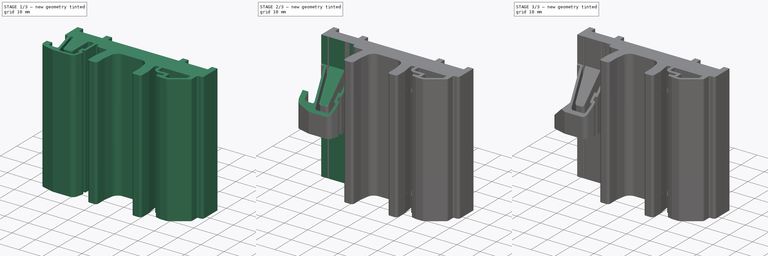
[diagram: build sequence overview — one tinted view per stage of 3, left to right]
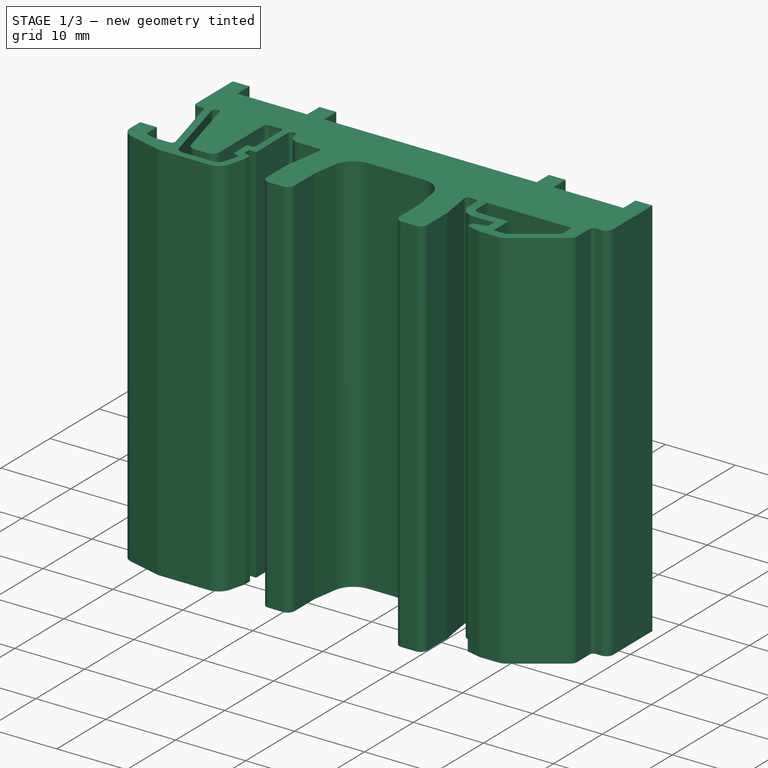
[diagram: stage 1 of 3 — iso view after this stage's code; geometry added in this stage tinted green]
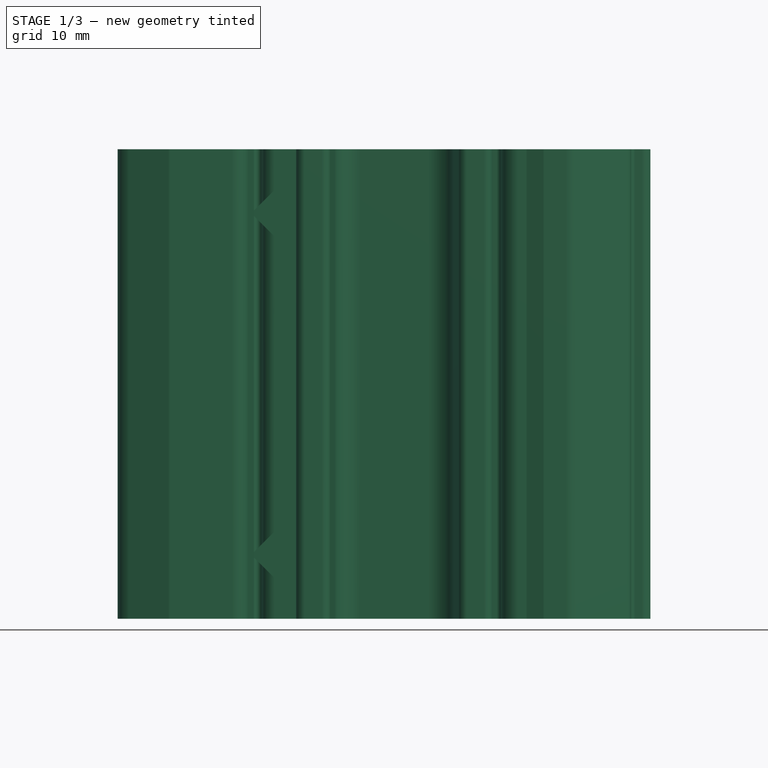
[diagram: stage 1 of 3 — front view after this stage's code; geometry added in this stage tinted green]
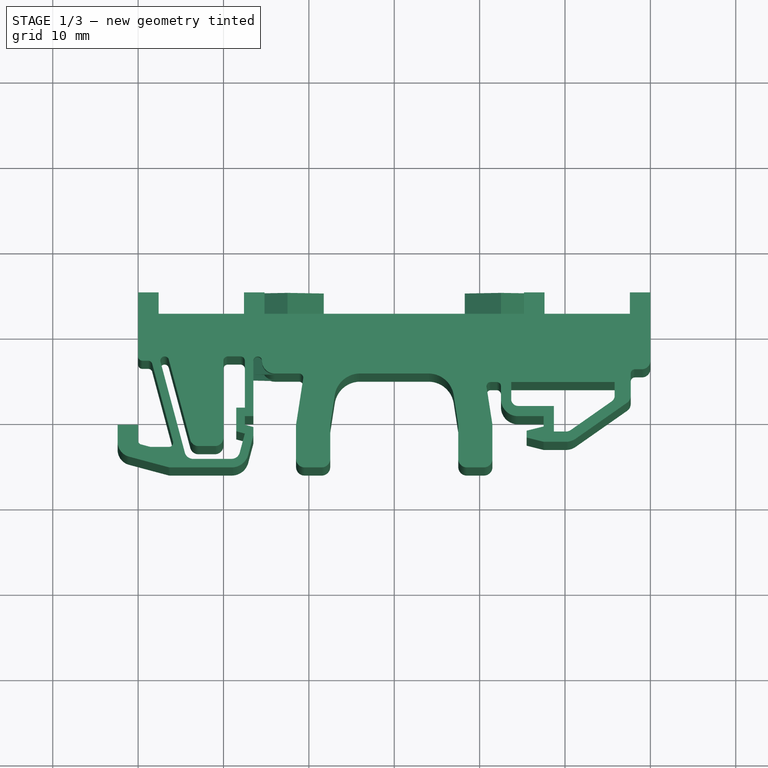
[diagram: stage 1 of 3 — top view after this stage's code; geometry added in this stage tinted green]
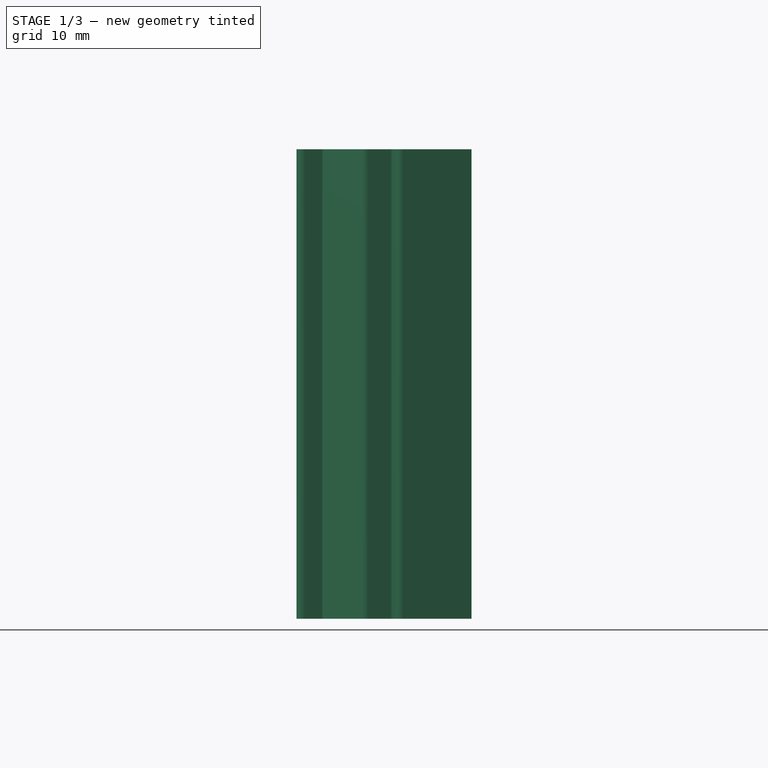
[diagram: stage 1 of 3 — right view after this stage's code; geometry added in this stage tinted green]
FCSTD DOCUMENT  (FreeCAD 0.21R33668 +26 (Git))
Label: din_rail_pcb_holder
License: All rights reserved
LicenseURL: http://en.wikipedia.org/wiki/All_rights_reserved
objects: Sketcher::SketchObject×7, PartDesign::Pocket×4, PartDesign::Pad×2, PartDesign::Body×1
note: 20 computed .brp shape members not serialized (recipe doc carries the construction recipe); baked Part::Feature solids carry a one-line shape summary decoded from their .brp

FEATURE [Sketcher::SketchObject] Sketch
  FullyConstrained = true
  MapMode = 5
  Support = -> [XY_Plane]
  sketch-geometry (109):
    g0: LineSegment StartX=-30 StartY=14.5 StartZ=0 EndX=-30 EndY=7 EndZ=0
    g1: ArcOfCircle CenterX=-29.5 CenterY=7 CenterZ=0 NormalX=0 NormalY=0 NormalZ=1 AngleXU=0 Radius=0.5 StartAngle=3.14159 EndAngle=4.71239
    g2: ArcOfCircle CenterX=-28.8294 CenterY=6 CenterZ=0 NormalX=0 NormalY=0 NormalZ=1 AngleXU=0 Radius=0.5 StartAngle=0.261799 EndAngle=1.5708
    g3: LineSegment StartX=-28.3464 StartY=6.12941 StartZ=0 EndX=-25.9081 EndY=-2.97059 EndZ=0
    g4: ArcOfCircle CenterX=-26.3911 CenterY=-3.1 CenterZ=0 NormalX=0 NormalY=0 NormalZ=1 AngleXU=0 Radius=0.5 StartAngle=4.71239 EndAngle=6.54498
    g5: ArcOfCircle CenterX=-29.5 CenterY=-2.82887 CenterZ=0 NormalX=0 NormalY=0 NormalZ=1 AngleXU=0 Radius=0.5 StartAngle=3.14159 EndAngle=4.45059
    g6: LineSegment StartX=-30 StartY=-2.82887 StartZ=0 EndX=-30 EndY=-1 EndZ=0
    g7: LineSegment StartX=-30 StartY=-1 StartZ=0 EndX=-32.4 EndY=-1 EndZ=0
    g8: LineSegment StartX=-32.4 StartY=-1 StartZ=0 EndX=-32.4 EndY=-3 EndZ=0
    g9: ArcOfCircle CenterX=-30.6 CenterY=-3 CenterZ=0 NormalX=0 NormalY=0 NormalZ=1 AngleXU=0 Radius=1.8 StartAngle=3.14159 EndAngle=4.45059
    g10: LineSegment StartX=-31.0659 StartY=-4.73867 StartZ=0 EndX=-26.4857 EndY=-5.96593 EndZ=0
    g11: ArcOfCircle CenterX=-26.2269 CenterY=-5 CenterZ=0 NormalX=0 NormalY=0 NormalZ=1 AngleXU=0 Radius=1 StartAngle=4.45059 EndAngle=4.71239
    g12: LineSegment StartX=-26.2269 StartY=-6 StartZ=0 EndX=-19.0347 EndY=-6 EndZ=0
    g13: ArcOfCircle CenterX=-19.0347 CenterY=-4 CenterZ=0 NormalX=0 NormalY=0 NormalZ=1 AngleXU=0 Radius=2 StartAngle=4.71239 EndAngle=6.02139
    g14: LineSegment StartX=-17.1028 StartY=-4.51764 StartZ=0 EndX=-16.5 EndY=-2.26795 EndZ=0
    g15: LineSegment StartX=-16.5 StartY=-2.26795 StartZ=0 EndX=-16.5 EndY=-1.26795 EndZ=0
    g16: LineSegment StartX=-16.5 StartY=-1.26795 StartZ=0 EndX=-17.5 EndY=-1 EndZ=0
    g17: LineSegment StartX=-17.5 StartY=-1 StartZ=0 EndX=-17.5 EndY=0 EndZ=0
    g18: LineSegment StartX=-17.5 StartY=0 StartZ=0 EndX=-16.5 EndY=0 EndZ=0
    g19: LineSegment StartX=-16.5 StartY=0 StartZ=0 EndX=-16.5 EndY=6.5 EndZ=0
    g20: ArcOfCircle CenterX=-16 CenterY=6.5 CenterZ=0 NormalX=0 NormalY=0 NormalZ=1 AngleXU=0 Radius=0.5 StartAngle=-9e-16 EndAngle=3.14159
    g21: ArcOfCircle CenterX=-14 CenterY=6.5 CenterZ=0 NormalX=0 NormalY=0 NormalZ=1 AngleXU=0 Radius=1.5 StartAngle=3.14159 EndAngle=4.71239
    g22: LineSegment StartX=-14 StartY=5 StartZ=0 EndX=-11.1548 EndY=5 EndZ=0
    g23: ArcOfCircle CenterX=-11.1548 CenterY=4.5 CenterZ=0 NormalX=0 NormalY=0 NormalZ=1 AngleXU=0 Radius=0.5 StartAngle=6.12964 EndAngle=7.85398
    g24: LineSegment StartX=-10.6606 StartY=4.42353 StartZ=0 EndX=-11.5 EndY=-1 EndZ=0
    g25: LineSegment StartX=-11.5 StartY=-1 StartZ=0 EndX=-11.5 EndY=-5 EndZ=0
    g26: ArcOfCircle CenterX=-10.5 CenterY=-5 CenterZ=0 NormalX=0 NormalY=0 NormalZ=1 AngleXU=0 Radius=1 StartAngle=3.14159 EndAngle=4.71239
    g27: LineSegment StartX=-10.5 StartY=-6 StartZ=0 EndX=-8.5 EndY=-6 EndZ=0
    g28: ArcOfCircle CenterX=-8.5 CenterY=-5 CenterZ=0 NormalX=0 NormalY=0 NormalZ=1 AngleXU=0 Radius=1 StartAngle=4.71239 EndAngle=6.28319
    g29: LineSegment StartX=-7.5 StartY=-5 StartZ=0 EndX=-7.5 EndY=-1 EndZ=0
    g30: LineSegment StartX=-7.5 StartY=-1 StartZ=0 EndX=-6.96471 EndY=2.45882 EndZ=0
    g31: ArcOfCircle CenterX=-4 CenterY=2 CenterZ=0 NormalX=0 NormalY=0 NormalZ=1 AngleXU=0 Radius=3 StartAngle=1.5708 EndAngle=2.98805
    g32: LineSegment StartX=-4 StartY=5 StartZ=0 EndX=4 EndY=5 EndZ=0
    g33: ArcOfCircle CenterX=4 CenterY=2 CenterZ=0 NormalX=0 NormalY=0 NormalZ=1 AngleXU=0 Radius=3 StartAngle=0.153544 EndAngle=1.5708
    g34: LineSegment StartX=6.96471 StartY=2.45882 StartZ=0 EndX=7.5 EndY=-1 EndZ=0
    g35: LineSegment StartX=7.5 StartY=-1 StartZ=0 EndX=7.5 EndY=-5 EndZ=0
    g36: ArcOfCircle CenterX=8.5 CenterY=-5 CenterZ=0 NormalX=0 NormalY=0 NormalZ=1 AngleXU=0 Radius=1 StartAngle=3.14159 EndAngle=4.71239
    g37: LineSegment StartX=8.5 StartY=-6 StartZ=0 EndX=10.5 EndY=-6 EndZ=0
    g38: ArcOfCircle CenterX=10.5 CenterY=-5 CenterZ=0 NormalX=0 NormalY=0 NormalZ=1 AngleXU=0 Radius=1 StartAngle=4.71239 EndAngle=6.28319
    g39: LineSegment StartX=11.5 StartY=-5 StartZ=0 EndX=11.5 EndY=-1 EndZ=0
    g40: LineSegment StartX=11.5 StartY=-1 StartZ=0 EndX=10.8154 EndY=3.42353 EndZ=0
    g41: LineSegment StartX=12.5 StartY=3.5 StartZ=0 EndX=12.5 EndY=2 EndZ=0
    g42: ArcOfCircle CenterX=14.5 CenterY=2 CenterZ=0 NormalX=0 NormalY=0 NormalZ=1 AngleXU=0 Radius=2 StartAngle=3.14159 EndAngle=4.71239
    g43: LineSegment StartX=14.5 StartY=0 StartZ=0 EndX=17.5 EndY=0 EndZ=0
    g44: LineSegment StartX=17.5 StartY=0 StartZ=0 EndX=17.5 EndY=-1.2 EndZ=0
    g45: LineSegment StartX=17.5 StartY=-1.2 StartZ=0 EndX=15.5 EndY=-1.7 EndZ=0
    g46: LineSegment StartX=15.5 StartY=-1.7 StartZ=0 EndX=15.5 EndY=-2.5 EndZ=0
    g47: LineSegment StartX=15.5 StartY=-2.5 StartZ=0 EndX=17.5 EndY=-3 EndZ=0
    g48: LineSegment StartX=17.5 StartY=-3 StartZ=0 EndX=20.1 EndY=-3 EndZ=0
    g49: ArcOfCircle CenterX=20.1 CenterY=-1 CenterZ=0 NormalX=0 NormalY=0 NormalZ=1 AngleXU=0 Radius=2 StartAngle=4.71239 EndAngle=5.32325
    g50: LineSegment StartX=21.2472 StartY=-2.6383 StartZ=0 EndX=27.2727 EndY=1.58085 EndZ=0
    g51: LineSegment StartX=30 StartY=6.5 StartZ=0 EndX=30 EndY=14.5 EndZ=0
    g52: LineSegment StartX=-23.8943 StartY=-2.75882 StartZ=0 EndX=-26.4099 EndY=6.62941 EndZ=0
    g53: ArcOfCircle CenterX=-26.8928 CenterY=6.5 CenterZ=0 NormalX=0 NormalY=0 NormalZ=1 AngleXU=0 Radius=0.5 StartAngle=0.261799 EndAngle=3.40339
    g54: LineSegment StartX=-27.3758 StartY=6.37059 StartZ=0 EndX=-24.5276 EndY=-4.25882 EndZ=0
    g55: ArcOfCircle CenterX=-23.5617 CenterY=-4 CenterZ=0 NormalX=0 NormalY=0 NormalZ=1 AngleXU=0 Radius=1 StartAngle=3.40339 EndAngle=4.71239
    g56: LineSegment StartX=-23.5617 StartY=-5 StartZ=0 EndX=-19.0617 EndY=-5 EndZ=0
    g57: ArcOfCircle CenterX=-19.0617 CenterY=-4 CenterZ=0 NormalX=0 NormalY=0 NormalZ=1 AngleXU=0 Radius=1 StartAngle=4.71239 EndAngle=6.02139
    g58: LineSegment StartX=-18.0958 StartY=-4.25882 StartZ=0 EndX=-17.5 EndY=-2.03528 EndZ=0
    g59: LineSegment StartX=-17.5 StartY=-2.03528 StartZ=0 EndX=-18.5 EndY=-1.76733 EndZ=0
    g60: LineSegment StartX=-18.5 StartY=-1.76733 StartZ=0 EndX=-18.5 EndY=1 EndZ=0
    g61: LineSegment StartX=-18.5 StartY=1 StartZ=0 EndX=-17.5 EndY=1 EndZ=0
    g62: LineSegment StartX=-17.5 StartY=1 StartZ=0 EndX=-17.5 EndY=6.5 EndZ=0
    g63: ArcOfCircle CenterX=-18 CenterY=6.5 CenterZ=0 NormalX=0 NormalY=0 NormalZ=1 AngleXU=0 Radius=0.5 StartAngle=-9e-16 EndAngle=1.5708
    g64: LineSegment StartX=-18 StartY=7 StartZ=0 EndX=-19.5 EndY=7 EndZ=0
    g65: ArcOfCircle CenterX=-19.5 CenterY=6.5 CenterZ=0 NormalX=0 NormalY=0 NormalZ=1 AngleXU=0 Radius=0.5 StartAngle=1.5708 EndAngle=3.14159
    g66: LineSegment StartX=-20 StartY=6.5 StartZ=0 EndX=-20 EndY=-2.5 EndZ=0
    g67: ArcOfCircle CenterX=-21 CenterY=-2.5 CenterZ=0 NormalX=0 NormalY=0 NormalZ=1 AngleXU=0 Radius=1 StartAngle=4.71239 EndAngle=6.28319
    g68: LineSegment StartX=-21 StartY=-3.5 StartZ=0 EndX=-22.9284 EndY=-3.5 EndZ=0
    g69: ArcOfCircle CenterX=-22.9284 CenterY=-2.5 CenterZ=0 NormalX=0 NormalY=0 NormalZ=1 AngleXU=0 Radius=1 StartAngle=3.40339 EndAngle=4.71239
    g70: LineSegment StartX=25.8188 StartY=4 StartZ=0 EndX=13.7 EndY=4 EndZ=0
    g71: LineSegment StartX=13.7 StartY=4 StartZ=0 EndX=13.7 EndY=2 EndZ=0
    g72: ArcOfCircle CenterX=14.5 CenterY=2 CenterZ=0 NormalX=0 NormalY=0 NormalZ=1 AngleXU=0 Radius=0.8 StartAngle=3.14159 EndAngle=4.71239
    g73: LineSegment StartX=14.5 StartY=1.2 StartZ=0 EndX=18.7 EndY=1.2 EndZ=0
    g74: LineSegment StartX=18.7 StartY=1.2 StartZ=0 EndX=18.7 EndY=-1.8 EndZ=0
    g75: LineSegment StartX=18.7 StartY=-1.8 StartZ=0 EndX=20.1 EndY=-1.8 EndZ=0
    g76: ArcOfCircle CenterX=20.1 CenterY=-0.8 CenterZ=0 NormalX=0 NormalY=0 NormalZ=1 AngleXU=0 Radius=1 StartAngle=4.71239 EndAngle=5.32325
    g77: LineSegment StartX=20.6736 StartY=-1.61915 StartZ=0 EndX=25.4776 EndY=1.74468 EndZ=0
    g78: ArcOfCircle CenterX=25.0188 CenterY=2.4 CenterZ=0 NormalX=0 NormalY=0 NormalZ=1 AngleXU=0 Radius=0.8 StartAngle=5.32325 EndAngle=6.28319
    g79: LineSegment StartX=25.8188 StartY=2.4 StartZ=0 EndX=25.8188 EndY=4 EndZ=0
    g80: LineSegment StartX=-30 StartY=7 StartZ=0 EndX=30 EndY=7 EndZ=0
    g81: LineSegment StartX=-29.6294 StartY=-3.31183 StartZ=0 EndX=-28.554 EndY=-3.6 EndZ=0
    g82: LineSegment StartX=-28.554 StartY=-3.6 StartZ=0 EndX=-26.3911 EndY=-3.6 EndZ=0
    g83: LineSegment StartX=-29.5 StartY=6.5 StartZ=0 EndX=-28.8294 EndY=6.5 EndZ=0
    g84: LineSegment StartX=11.3095 StartY=4 StartZ=0 EndX=12 EndY=4 EndZ=0
    g85: ArcOfCircle CenterX=11.3095 CenterY=3.5 CenterZ=0 NormalX=0 NormalY=0 NormalZ=1 AngleXU=0 Radius=0.5 StartAngle=1.5708 EndAngle=3.29514
    g86: GeomPoint X=10.7262 Y=4 Z=0
    g87: ArcOfCircle CenterX=12 CenterY=3.5 CenterZ=0 NormalX=0 NormalY=0 NormalZ=1 AngleXU=0 Radius=0.5 StartAngle=0 EndAngle=1.5708
    g88: GeomPoint X=12.5 Y=4 Z=0
    g89: LineSegment StartX=29 StartY=5.5 StartZ=0 EndX=28.1992 EndY=5.5 EndZ=0
    g90: ArcOfCircle CenterX=26.6992 CenterY=2.4 CenterZ=0 NormalX=0 NormalY=0 NormalZ=1 AngleXU=0 Radius=1 StartAngle=5.32325 EndAngle=6.28319
    g91: ArcOfCircle CenterX=29 CenterY=6.5 CenterZ=0 NormalX=0 NormalY=0 NormalZ=1 AngleXU=0 Radius=1 StartAngle=4.71239 EndAngle=6.28319
    g92: GeomPoint X=30 Y=5.5 Z=0
    g93: LineSegment StartX=27.6992 StartY=2.4 StartZ=0 EndX=27.6992 EndY=5 EndZ=0
    g94: ArcOfCircle CenterX=28.1992 CenterY=5 CenterZ=0 NormalX=0 NormalY=0 NormalZ=1 AngleXU=0 Radius=0.5 StartAngle=1.5708 EndAngle=3.14159
    g95: GeomPoint X=0 Y=14.5 Z=0
    g96: LineSegment StartX=-27.6 StartY=14.5 StartZ=0 EndX=-27.6 EndY=12 EndZ=0
    g97: LineSegment StartX=-27.6 StartY=12 StartZ=0 EndX=-17.6 EndY=12 EndZ=0
    g98: LineSegment StartX=-17.6 StartY=12 StartZ=0 EndX=-17.6 EndY=14.5 EndZ=0
    g99: LineSegment StartX=-17.6 StartY=14.5 StartZ=0 EndX=-15.2 EndY=14.5 EndZ=0
    g100: LineSegment StartX=-15.2 StartY=14.5 StartZ=0 EndX=-15.2 EndY=12 EndZ=0
    g101: LineSegment StartX=-15.2 StartY=12 StartZ=0 EndX=15.2 EndY=12 EndZ=0
    g102: LineSegment StartX=15.2 StartY=12 StartZ=0 EndX=15.2 EndY=14.5 EndZ=0
    g103: LineSegment StartX=15.2 StartY=14.5 StartZ=0 EndX=17.6 EndY=14.5 EndZ=0
    g104: LineSegment StartX=17.6 StartY=14.5 StartZ=0 EndX=17.6 EndY=12 EndZ=0
    g105: LineSegment StartX=17.6 StartY=12 StartZ=0 EndX=27.6 EndY=12 EndZ=0
    g106: LineSegment StartX=27.6 StartY=12 StartZ=0 EndX=27.6 EndY=14.5 EndZ=0
    g107: LineSegment StartX=27.6 StartY=14.5 StartZ=0 EndX=30 EndY=14.5 EndZ=0
    g108: LineSegment StartX=-27.6 StartY=14.5 StartZ=0 EndX=-30 EndY=14.5 EndZ=0
  constraints (287):
    c: Vertical(g0)
    c: Tangent(g0,g1) = -1.5708
    c: Tangent(g3,g4) = 1.5708
    c: Vertical(g6)
    c: Coincident(g6,g7)
    c: Horizontal(g7)
    c: Coincident(g7,g8)
    c: Vertical(g8)
    c: Tangent(g8,g9) = -1.5708
    c: Tangent(g10,g11) = -1.5708
    c: Horizontal(g12)
    c: Tangent(g12,g13) = -1.5708
    c: Coincident(g14,g15)
    c: Vertical(g15)
    c: Coincident(g15,g16)
    c: Coincident(g16,g17)
    c: PointOnObject(g17,g-1)
    c: Vertical(g17)
    c: Coincident(g17,g18)
    c: PointOnObject(g18,g-1)
    c: Coincident(g18,g19)
    c: Vertical(g19)
    c: Tangent(g19,g20) = 1.5708
    c: Tangent(g20,g21) = 1.5708
    c: Horizontal(g22)
    c: Tangent(g22,g23) = 1.5708
    c: Coincident(g24,g25)
    c: Vertical(g25)
    c: Tangent(g25,g26) = -1.5708
    c: Horizontal(g27)
    c: Tangent(g27,g28) = -1.5708
    c: Vertical(g29)
    c: Coincident(g29,g30)
    c: Tangent(g30,g31) = 1.5708
    c: Tangent(g32,g33) = 1.5708
    c: Coincident(g34,g35)
    c: Vertical(g35)
    c: Tangent(g35,g36) = -1.5708
    c: Horizontal(g37)
    c: Tangent(g37,g38) = -1.5708
    c: Vertical(g39)
    c: Coincident(g39,g40)
    c: Vertical(g41)
    c: Tangent(g41,g42) = -1.5708
    c: Tangent(g42,g43) = -1.5708
    c: Coincident(g43,g44)
    c: Vertical(g44)
    c: Coincident(g44,g45)
    c: Coincident(g45,g46)
    c: Vertical(g46)
    c: Coincident(g46,g47)
    c: Coincident(g47,g48)
    c: Horizontal(g48)
    c: Tangent(g48,g49) = -1.5708
    c: Vertical(g51)
    c: Tangent(g52,g53) = -1.5708
    c: Tangent(g54,g55) = -1.5708
    c: Horizontal(g56)
    c: Tangent(g56,g57) = -1.5708
    c: Coincident(g58,g59)
    c: Coincident(g59,g60)
    c: Vertical(g60)
    c: Coincident(g60,g61)
    c: Horizontal(g61)
    c: Coincident(g61,g62)
    c: Vertical(g62)
    c: Tangent(g62,g63) = -1.5708
    c: Tangent(g64,g65) = -1.5708
    c: Vertical(g66)
    c: Tangent(g66,g67) = 1.5708
    c: Horizontal(g68)
    c: Tangent(g68,g69) = 1.5708
    c: Horizontal(g70)
    c: Coincident(g70,g71)
    c: Vertical(g71)
    c: Tangent(g71,g72) = -1.5708
    c: Horizontal(g73)
    c: Coincident(g73,g74)
    c: Vertical(g74)
    c: Coincident(g74,g75)
    c: Horizontal(g75)
    c: Tangent(g75,g76) = -1.5708
    c: Tangent(g77,g78) = -1.5708
    c: Coincident(g79,g70)
    c: Vertical(g79)
    c: DistanceY(g0,g0) = 7.5  'Base_Width'
    c: Radius(g4) = 0.5
    c: Radius(g5) = 0.5
    c: DistanceY(g6,g-1) = 1
    c: DistanceX(g7,g7) = 2.4
    c: DistanceY(g8,g8) = 2
    c: Radius(g9) = 1.8
    c: Radius(g11) = 1
    c: Radius(g13) = 2
    c: Radius(g1) = 0.5
    c: Tangent(g2,g3) = 1.5708
    c: Tangent(g11,g12) = -1.5708
    c: Radius(g67) = 1
    c: Radius(g26) = 1
    c: Radius(g31) = 3
    c: Radius(g42) = 2
    c: Radius(g72) = 0.8
    c: Radius(g78) = 0.8
    c: Radius(g76) = 1
    c: Radius(g49) = 2
    c: Vertical(g61,g58)
    c: Vertical(g18,g15)
    c: Vertical(g61,g17)
    c: DistanceY(g56,g67) = 1.5
    c: DistanceY(g12,g56) = 1
    c: DistanceX(g65,g62) = 2.5
    c: DistanceX(g43,g73) = 1.2
    c: DistanceY(g43,g73) = 1.2
    c: Vertical(g44,g47)
    c: DistanceY(g47,g44) = 1.8
    c: Tangent(g26,g27) = -1.5708
    c: Tangent(g28,g29) = -1.5708
    c: DistanceX(g17,g43) = 35
    c: Symmetric(g17,g43,g-2)
    c: Tangent(g36,g37) = -1.5708
    c: Tangent(g38,g39) = -1.5708
    c: Equal(g38,g36)
    c: Equal(g36,g28)
    c: Equal(g28,g26)
    c: Equal(g31,g33)
    c: Equal(g39,g35)
    c: Equal(g35,g29)
    c: Equal(g29,g25)
    c: DistanceY(g-1,g27) = -6
    c: Symmetric(g28,g35,g-2)
    c: DistanceX(g28,g35) = 15
    c: DistanceX(g25,g28) = 4
    c: Equal(g27,g37)
    c: DistanceY(g25,g25) = 4
    c: DistanceY(g-1,g31) = 5
    c: Equal(g57,g67)
    c: Equal(g67,g69)
    c: Equal(g69,g55)
    c: DistanceY(g17,g17) = 1
    c: DistanceY(g44,g44) = 1.2
    c: Equal(g47,g45)
    c: DistanceY(g46,g46) = 0.8
    c: DistanceX(g45,g44) = 2
    c: DistanceX(g43,g43) = 3
    c: Tangent(g31,g32) = 1.5708
    c: Symmetric(g31,g32,g-2)
    c: DistanceX(g32,g32) = 8
    c: Parallel(g24,g30)
    c: Horizontal(g22,g31)
    c: Tangent(g65,g66) = -1.5708
    c: Tangent(g63,g64) = -1.5708
    c: Equal(g53,g65)
    c: Equal(g65,g63)
    c: Equal(g63,g20)
    c: Equal(g20,g23)
    c: Equal(g17,g18)
    c: Equal(g18,g61)
    c: Parallel(g14,g58)
    c: Angle(g16,g18) = 0.261799
    c: DistanceY(g-1,g12) = -6
    c: Distance(g74,g48) = 1.2
    c: Tangent(g78,g79) = -1.5708
    c: Tangent(g49,g50) = -1.5708
    c: Tangent(g76,g77) = -1.5708
    c: DistanceY(g79,g79) = 1.6
    c: Parallel(g77,g50)
    c: Vertical(g48,g75)
    c: Angle(g70,g77) = 0.610865
    c: Perpendicular(g16,g58)
    c: Equal(g15,g17)
    c: Tangent(g13,g14) = -1.5708
    c: Tangent(g57,g58) = -1.5708
    c: Parallel(g3,g54)
    c: Parallel(g54,g52)
    c: Angle(g66,g52) = 0.261799
    c: Tangent(g72,g73) = -1.5708
    c: Tangent(g9,g10) = -1.5708
    c: Tangent(g5,g6) = 1.5708
    c: Distance(g53,g3) = 1
    c: DistanceX(g56,g56) = 4.5
    c: Tangent(g55,g56) = -1.5708
    c: Parallel(g59,g16)
    c: Distance(g58,g16) = 1
    c: Tangent(g69,g52) = 1.5708
    c: Coincident(g80,g0)
    c: PointOnObject(g80,g51)
    c: Horizontal(g80)
    c: Tangent(g20,g80)
    c: Horizontal(g64)
    c: PointOnObject(g64,g80)
    c: Tangent(g53,g80)
    c: DistanceY(g-1,g0) = 7
    c: Parallel(g10,g16)
    c: Parallel(g81,g10)
    c: Distance(g5,g10) = 1.75
    c: Coincident(g82,g81)
    c: Horizontal(g82)
    c: Tangent(g81,g5) = -1.5708
    c: Tangent(g82,g4) = -1.5708
    c: DistanceY(g11,g4) = 2.4
    c: Vertical(g6,g0)
    c: DistanceX(g80,g80) = 60  'Total_Height'
    c: Tangent(g53,g54) = -1.5708
    c: DistanceY(g17,g61) = 1
    c: Tangent(g23,g24) = 1.5708
    c: Tangent(g33,g34) = 1.5708
    c: Tangent(g21,g22) = -1.5708
    c: Tangent(g67,g68) = 1.5708
    c: Equal(g1,g2)
    c: Horizontal(g21,g19)
    c: Tangent(g83,g1) = -1.5708
    c: Horizontal(g83)
    c: Tangent(g2,g83) = 1.5708
    c: Parallel(g34,g40)
    c: DistanceX(g41,g71) = 1.2
    c: Horizontal(g84)
    c: Horizontal(g88,g70)
    c: PointOnObject(g86,g40)
    c: PointOnObject(g86,g84)
    c: Tangent(g40,g85) = 1.5708
    c: Tangent(g84,g85) = 1.5708
    c: PointOnObject(g88,g41)
    c: PointOnObject(g88,g84)
    c: Tangent(g41,g87) = 1.5708
    c: Tangent(g84,g87) = 1.5708
    c: Equal(g85,g87)
    c: Equal(g85,g23)
    c: DistanceX(g75,g75) = 1.4
    c: DistanceY(g71,g71) = 2
    c: Radius(g85) = 0.5
    c: Horizontal(g89)
    c: PointOnObject(g92,g51)
    c: PointOnObject(g92,g89)
    c: Tangent(g51,g91) = -1.5708
    c: Tangent(g89,g91) = 1.5708
    c: Radius(g91) = 1
    c: Tangent(g90,g50) = -1.5708
    c: Radius(g90) = 1
    c: Horizontal(g78,g90)
    c: DistanceY(g51,g80) = 0.5
    c: Vertical(g93)
    c: Tangent(g93,g90) = -1.5708
    c: Tangent(g89,g94) = -1.5708
    c: Tangent(g93,g94) = 1.5708
    c: Radius(g94) = 0.5
    c: Symmetric(g0,g51,g95)
    c: DistanceX(g-2,g95) = 0  'Center_Offset'
    c: Horizontal(g43)
    c: Coincident(g96,g97)
    c: Horizontal(g97)
    c: Coincident(g97,g98)
    c: Coincident(g98,g99)
    c: Horizontal(g99)
    c: Coincident(g99,g100)
    c: Coincident(g100,g101)
    c: Horizontal(g101)
    c: Coincident(g101,g102)
    c: Vertical(g102)
    c: Coincident(g102,g103)
    c: Horizontal(g103)
    c: Coincident(g103,g104)
    c: Vertical(g104)
    c: Coincident(g104,g105)
    c: Horizontal(g105)
    c: Coincident(g105,g106)
    c: Vertical(g106)
    c: Coincident(g106,g107)
    c: Coincident(g107,g51)
    c: Horizontal(g107)
    c: Vertical(g100)
    c: Vertical(g98)
    c: Vertical(g96)
    c: Equal(g107,g103)
    c: Equal(g103,g99)
    c: DistanceX(g103,g103) = 2.4
    c: Equal(g97,g105)
    c: Equal(g96,g98)
    c: Equal(g98,g100)
    c: Equal(g100,g102)
    c: Equal(g102,g104)
    c: Equal(g104,g106)
    c: DistanceY(g96,g96) = 2.5
    c: Coincident(g108,g96)
    c: Coincident(g108,g0)
    c: Horizontal(g108)
    c: Equal(g99,g108)
    c: DistanceX(g97,g97) = 10
FEATURE [PartDesign::Pad] Pad  label="din_rail_pcb_holder_profil"
  AllowMultiFace = false
  Direction = (0,0,1)
  Length = 55
  Length2 = 100
  Midplane = true
  Profile = -> Sketch
  ReferenceAxis = -> Sketch [N_Axis]
  Refine = true
  Type = 0
FEATURE [Sketcher::SketchObject] Sketch001  label="master_schraubenloch"
  FullyConstrained = true
  MapMode = 5
  Placement = pos=(0,0,0) rot=(1,0,0;1.5708rad)
  Support = -> [XZ_Plane]
  sketch-geometry (5):
    g0: LineSegment StartX=12.5 StartY=-20 StartZ=0 EndX=12.5 EndY=20 EndZ=0
    g1: LineSegment StartX=12.5 StartY=20 StartZ=0 EndX=-12.5 EndY=20 EndZ=0
    g2: LineSegment StartX=-12.5 StartY=20 StartZ=0 EndX=-12.5 EndY=-20 EndZ=0
    g3: LineSegment StartX=-12.5 StartY=-20 StartZ=0 EndX=12.5 EndY=-20 EndZ=0
    g4: GeomPoint X=0 Y=0 Z=0
  constraints (12):
    c: Coincident(g0,g1)
    c: Coincident(g1,g2)
    c: Coincident(g2,g3)
    c: Coincident(g3,g0)
    c: Horizontal(g1)
    c: Horizontal(g3)
    c: Vertical(g0)
    c: Vertical(g2)
    c: Symmetric(g1,g0,g4)
    c: Coincident(g4,g-1)
    c: DistanceY(g0,g0) = 40  'breite'
    c: DistanceX(g1,g1) = 25  'hoehe'
FEATURE [Sketcher::SketchObject] Sketch002
  AttachmentOffset = pos=(0,0,-5) rot=(0,0,1;0rad)
  FullyConstrained = true
  MapMode = 5
  Placement = pos=(0,5,1.1e-15) rot=(1,0,0;1.5708rad)
  Support = -> [XZ_Plane]
  expr: Constraints[10] = <<master_schraubenloch>>.Constraints.breite
  expr: Constraints[11] = <<master_schraubenloch>>.Constraints.hoehe
  sketch-geometry (29):
    g0: LineSegment StartX=-12.5 StartY=20 StartZ=0 EndX=-12.5 EndY=-20 EndZ=0
    g1: LineSegment StartX=-12.5 StartY=-20 StartZ=0 EndX=12.5 EndY=-20 EndZ=0
    g2: LineSegment StartX=12.5 StartY=-20 StartZ=0 EndX=12.5 EndY=20 EndZ=0
    g3: LineSegment StartX=12.5 StartY=20 StartZ=0 EndX=-12.5 EndY=20 EndZ=0
    g4: GeomPoint X=0 Y=0 Z=0
    g5: LineSegment StartX=-16.7426 StartY=20 StartZ=0 EndX=-12.5 EndY=15.7574 EndZ=0
    g6: LineSegment StartX=-12.5 StartY=15.7574 StartZ=0 EndX=-8.25736 EndY=20 EndZ=0
    g7: LineSegment StartX=-8.25736 StartY=20 StartZ=0 EndX=-12.5 EndY=24.2426 EndZ=0
    g8: LineSegment StartX=-12.5 StartY=24.2426 StartZ=0 EndX=-16.7426 EndY=20 EndZ=0
    g9: Circle CenterX=-12.5 CenterY=20 CenterZ=0 NormalX=0 NormalY=0 NormalZ=1 AngleXU=0 Radius=4.24264
    g10: LineSegment StartX=12.5 StartY=15.7574 StartZ=0 EndX=16.7426 EndY=20 EndZ=0
    g11: LineSegment StartX=16.7426 StartY=20 StartZ=0 EndX=12.5 EndY=24.2426 EndZ=0
    g12: LineSegment StartX=12.5 StartY=24.2426 StartZ=0 EndX=8.25736 EndY=20 EndZ=0
    g13: LineSegment StartX=8.25736 StartY=20 StartZ=0 EndX=12.5 EndY=15.7574 EndZ=0
    g14: Circle CenterX=12.5 CenterY=20 CenterZ=0 NormalX=0 NormalY=0 NormalZ=1 AngleXU=0 Radius=4.24264
    g15: LineSegment StartX=-12.5 StartY=-24.2426 StartZ=0 EndX=-8.25736 EndY=-20 EndZ=0
    g16: LineSegment StartX=-8.25736 StartY=-20 StartZ=0 EndX=-12.5 EndY=-15.7574 EndZ=0
    g17: LineSegment StartX=-12.5 StartY=-15.7574 StartZ=0 EndX=-16.7426 EndY=-20 EndZ=0
    g18: LineSegment StartX=-16.7426 StartY=-20 StartZ=0 EndX=-12.5 EndY=-24.2426 EndZ=0
    g19: Circle CenterX=-12.5 CenterY=-20 CenterZ=0 NormalX=0 NormalY=0 NormalZ=1 AngleXU=0 Radius=4.24264
    g20: LineSegment StartX=12.5 StartY=-24.2426 StartZ=0 EndX=16.7426 EndY=-20 EndZ=0
    g21: LineSegment StartX=16.7426 StartY=-20 StartZ=0 EndX=12.5 EndY=-15.7574 EndZ=0
    g22: LineSegment StartX=12.5 StartY=-15.7574 StartZ=0 EndX=8.25736 EndY=-20 EndZ=0
    g23: LineSegment StartX=8.25736 StartY=-20 StartZ=0 EndX=12.5 EndY=-24.2426 EndZ=0
    g24: Circle CenterX=12.5 CenterY=-20 CenterZ=0 NormalX=0 NormalY=0 NormalZ=1 AngleXU=0 Radius=4.24264
    g25: LineSegment StartX=-12.5 StartY=24.2426 StartZ=0 EndX=-12.5 EndY=15.7574 EndZ=0
    g26: LineSegment StartX=12.5 StartY=24.2426 StartZ=0 EndX=12.5 EndY=15.7574 EndZ=0
    g27: LineSegment StartX=12.5 StartY=-15.7574 StartZ=0 EndX=12.5 EndY=-24.2426 EndZ=0
    g28: LineSegment StartX=-12.5 StartY=-15.7574 StartZ=0 EndX=-12.5 EndY=-24.2426 EndZ=0
  constraints (76):
    c: Coincident(g0,g1)
    c: Coincident(g1,g2)
    c: Coincident(g2,g3)
    c: Coincident(g3,g0)
    c: Horizontal(g1)
    c: Horizontal(g3)
    c: Vertical(g0)
    c: Vertical(g2)
    c: Symmetric(g1,g0,g4)
    c: Coincident(g4,g-1)
    c: DistanceY(g2,g2) = 40
    c: DistanceX(g3,g3) = 25
    c: Coincident(g5,g6)
    c: Coincident(g6,g7)
    c: Coincident(g7,g8)
    c: Coincident(g8,g5)
    c: Equal(g5,g6)
    c: Equal(g5,g7)
    c: Equal(g5,g8)
    c: PointOnObject(g5,g9)
    c: PointOnObject(g6,g9)
    c: PointOnObject(g7,g9)
    c: PointOnObject(g8,g9)
    c: Coincident(g9,g0)
    c: Coincident(g10,g11)
    c: Coincident(g11,g12)
    c: Coincident(g12,g13)
    c: Coincident(g13,g10)
    c: Equal(g10,g11)
    c: Equal(g10,g12)
    c: Equal(g10,g13)
    c: PointOnObject(g10,g14)
    c: PointOnObject(g11,g14)
    c: PointOnObject(g12,g14)
    c: PointOnObject(g13,g14)
    c: Coincident(g15,g16)
    c: Coincident(g16,g17)
    c: Coincident(g17,g18)
    c: Coincident(g18,g15)
    c: Equal(g15,g16)
    c: Equal(g15,g17)
    c: Equal(g15,g18)
    c: PointOnObject(g15,g19)
    c: PointOnObject(g16,g19)
    c: PointOnObject(g17,g19)
    c: PointOnObject(g18,g19)
    c: Coincident(g19,g0)
    c: Coincident(g20,g21)
    c: Coincident(g21,g22)
    c: Coincident(g22,g23)
    c: Coincident(g23,g20)
    c: Equal(g20,g21)
    c: Equal(g20,g22)
    c: Equal(g20,g23)
    c: PointOnObject(g20,g24)
    c: PointOnObject(g21,g24)
    c: PointOnObject(g22,g24)
    c: PointOnObject(g23,g24)
    c: Coincident(g24,g1)
    c: Coincident(g25,g7)
    c: Coincident(g25,g5)
    c: Coincident(g26,g11)
    c: Coincident(g26,g10)
    c: Coincident(g27,g22)
    c: Coincident(g27,g20)
    c: Coincident(g28,g16)
    c: Coincident(g28,g15)
    c: Vertical(g25)
    c: Vertical(g26)
    c: Vertical(g27)
    c: Vertical(g28)
    c: Equal(g17,g22)
    c: Equal(g22,g12)
    c: Equal(g12,g8)
    c: Distance(g8) = 6
    c: Coincident(g14,g2)
FEATURE [PartDesign::Pad] Pad001  label="schraubenstuetzen"
  BaseFeature = -> Pad
  Direction = (0,-1,-2e-16)
  Length = 9.5
  Length2 = 10
  Profile = -> Sketch002
  ReferenceAxis = -> Sketch002 [N_Axis]
  Reversed = true
  Type = 0
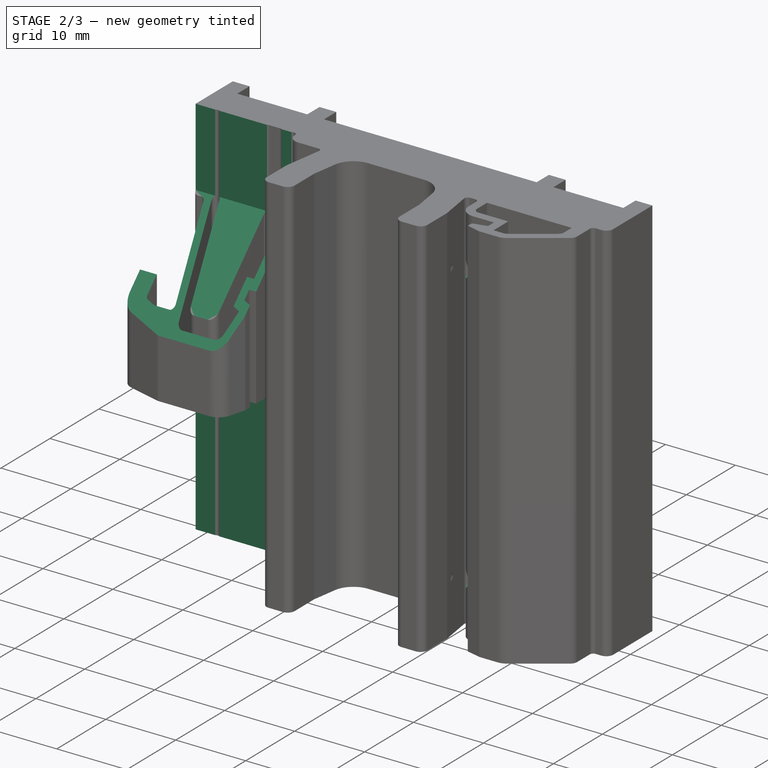
[diagram: stage 2 of 3 — iso view after this stage's code; geometry added in this stage tinted green]
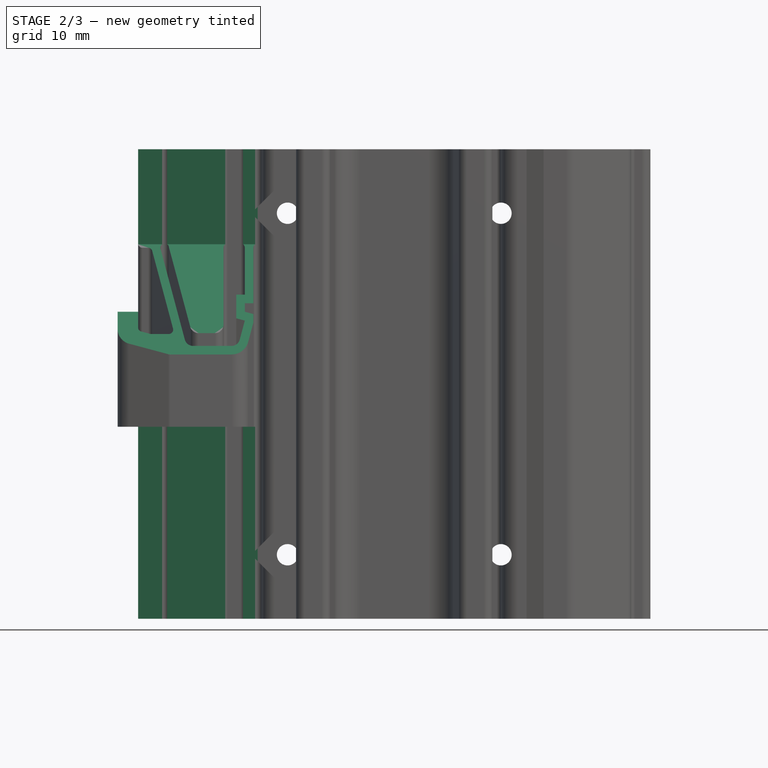
[diagram: stage 2 of 3 — front view after this stage's code; geometry added in this stage tinted green]
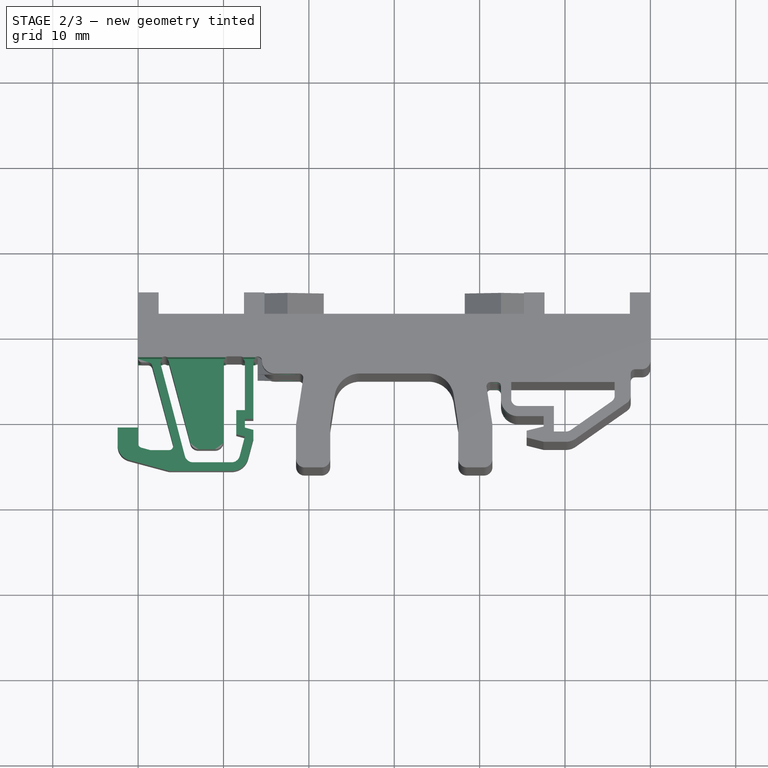
[diagram: stage 2 of 3 — top view after this stage's code; geometry added in this stage tinted green]
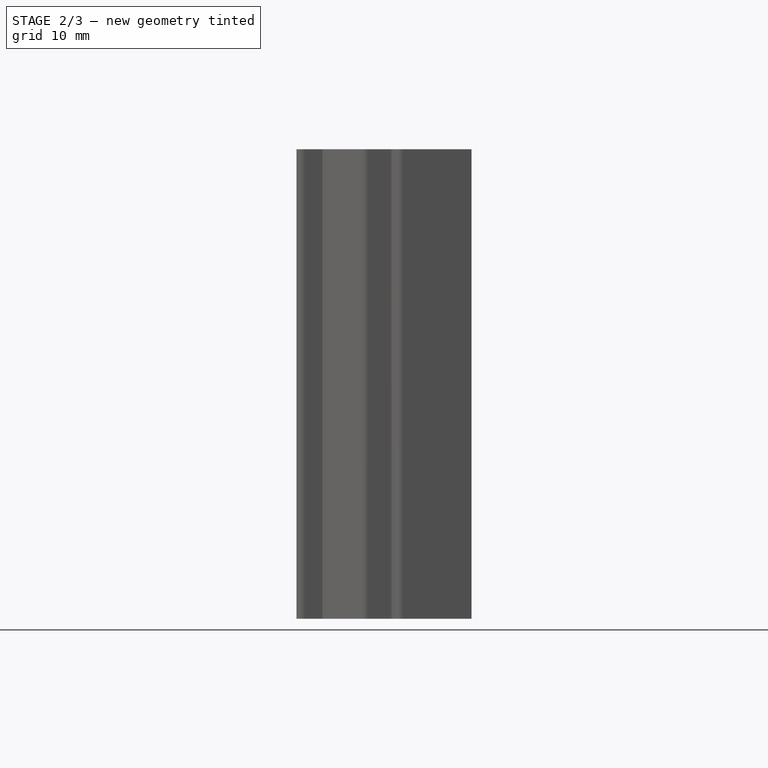
[diagram: stage 2 of 3 — right view after this stage's code; geometry added in this stage tinted green]
FEATURE [Sketcher::SketchObject] Sketch003
  FullyConstrained = true
  MapMode = 5
  Placement = pos=(0,0,0) rot=(1,0,0;1.5708rad)
  Support = -> [XZ_Plane]
  expr: Constraints[10] = <<master_schraubenloch>>.Constraints.hoehe
  expr: Constraints[11] = <<master_schraubenloch>>.Constraints.breite
  sketch-geometry (9):
    g0: LineSegment StartX=12.5 StartY=-20 StartZ=0 EndX=12.5 EndY=20 EndZ=0
    g1: LineSegment StartX=12.5 StartY=20 StartZ=0 EndX=-12.5 EndY=20 EndZ=0
    g2: LineSegment StartX=-12.5 StartY=20 StartZ=0 EndX=-12.5 EndY=-20 EndZ=0
    g3: LineSegment StartX=-12.5 StartY=-20 StartZ=0 EndX=12.5 EndY=-20 EndZ=0
    g4: GeomPoint X=0 Y=0 Z=0
    g5: Circle CenterX=-12.5 CenterY=20 CenterZ=0 NormalX=0 NormalY=0 NormalZ=1 AngleXU=0 Radius=1.25
    g6: Circle CenterX=12.5 CenterY=20 CenterZ=0 NormalX=0 NormalY=0 NormalZ=1 AngleXU=0 Radius=1.25
    g7: Circle CenterX=12.5 CenterY=-20 CenterZ=0 NormalX=0 NormalY=0 NormalZ=1 AngleXU=0 Radius=1.25
    g8: Circle CenterX=-12.5 CenterY=-20 CenterZ=0 NormalX=0 NormalY=0 NormalZ=1 AngleXU=0 Radius=1.25
  constraints (20):
    c: Coincident(g0,g1)
    c: Coincident(g1,g2)
    c: Coincident(g2,g3)
    c: Coincident(g3,g0)
    c: Horizontal(g1)
    c: Horizontal(g3)
    c: Vertical(g0)
    c: Vertical(g2)
    c: Symmetric(g1,g0,g4)
    c: Coincident(g4,g-1)
    c: DistanceX(g1,g1) = 25
    c: DistanceY(g0,g0) = 40
    c: Coincident(g5,g1)
    c: Coincident(g6,g0)
    c: Coincident(g7,g0)
    c: Coincident(g8,g2)
    c: Equal(g8,g5)
    c: Equal(g5,g6)
    c: Equal(g6,g7)
    c: Diameter(g6) = 2.5
FEATURE [PartDesign::Pocket] Pocket  label="schraubenloecher"
  BaseFeature = -> Pad001
  Direction = (0,1,2e-16)
  Length = 5
  Length2 = 5
  Profile = -> Sketch003
  ReferenceAxis = -> Sketch003 [N_Axis]
  Type = 1
FEATURE [Sketcher::SketchObject] Sketch004
  AttachmentOffset = pos=(0,0,-16) rot=(0,0,1;0rad)
  FullyConstrained = false
  MapMode = 5
  Placement = pos=(-16,3.6e-15,-3.6e-15) rot=(0.57735,0.57735,0.57735;2.0944rad)
  Support = -> [YZ_Plane]
  sketch-geometry (9):
    g0: LineSegment StartX=6.90738 StartY=33.7036 StartZ=0 EndX=6.90738 EndY=16.3693 EndZ=0
    g1: LineSegment StartX=6.90738 StartY=16.3693 StartZ=0 EndX=-6.96194 EndY=2.5 EndZ=0
    g2: LineSegment StartX=-6.96194 StartY=2.5 StartZ=0 EndX=-6.96194 EndY=-5 EndZ=0
    g3: LineSegment StartX=-6.96194 StartY=-5 StartZ=0 EndX=6.90738 EndY=-5 EndZ=0
    g4: LineSegment StartX=6.90738 StartY=-5 StartZ=0 EndX=6.90738 EndY=-30.2434 EndZ=0
    g5: LineSegment StartX=6.90738 StartY=-30.2434 StartZ=0 EndX=-25.4004 EndY=-30.2434 EndZ=0
    g6: LineSegment StartX=-25.4004 StartY=-30.2434 StartZ=0 EndX=-25.4004 EndY=33.7036 EndZ=0
    g7: LineSegment StartX=-25.4004 StartY=33.7036 StartZ=0 EndX=6.90738 EndY=33.7036 EndZ=0
    g8: LineSegment StartX=6.90738 StartY=16.3693 StartZ=0 EndX=6.90738 EndY=-5 EndZ=0
  constraints (21):
    c: Vertical(g0)
    c: Coincident(g0,g1)
    c: Coincident(g1,g2)
    c: Coincident(g2,g3)
    c: Horizontal(g3)
    c: Coincident(g3,g4)
    c: Vertical(g4)
    c: Coincident(g4,g5)
    c: Horizontal(g5)
    c: Coincident(g5,g6)
    c: Vertical(g6)
    c: Coincident(g6,g7)
    c: Coincident(g7,g0)
    c: Horizontal(g7)
    c: Angle(g1) = -2.35619
    c: Coincident(g8,g0)
    c: Coincident(g8,g3)
    c: Vertical(g8)
    c: Vertical(g2)
    c: DistanceY(g2) = -5
    c: DistanceY(g1) = 2.5
FEATURE [PartDesign::Pocket] Pocket001  label="lasche kleiner 1"
  BaseFeature = -> Pocket
  Direction = (-1,2e-16,-3e-16)
  Length = 5
  Length2 = 5
  Profile = -> Sketch004
  ReferenceAxis = -> Sketch004 [N_Axis]
  Type = 1
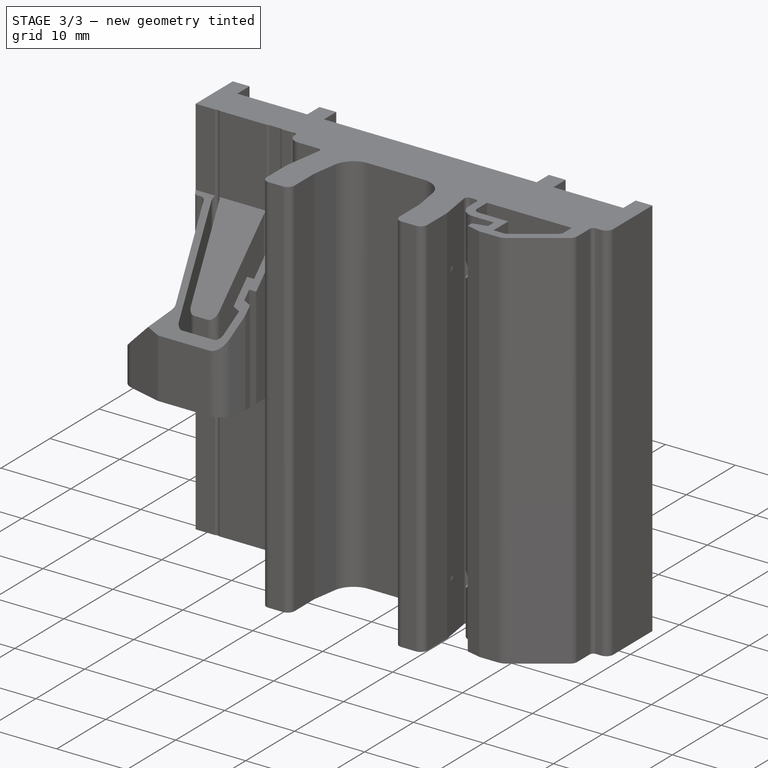
[diagram: stage 3 of 3 — iso view after this stage's code; geometry added in this stage tinted green]
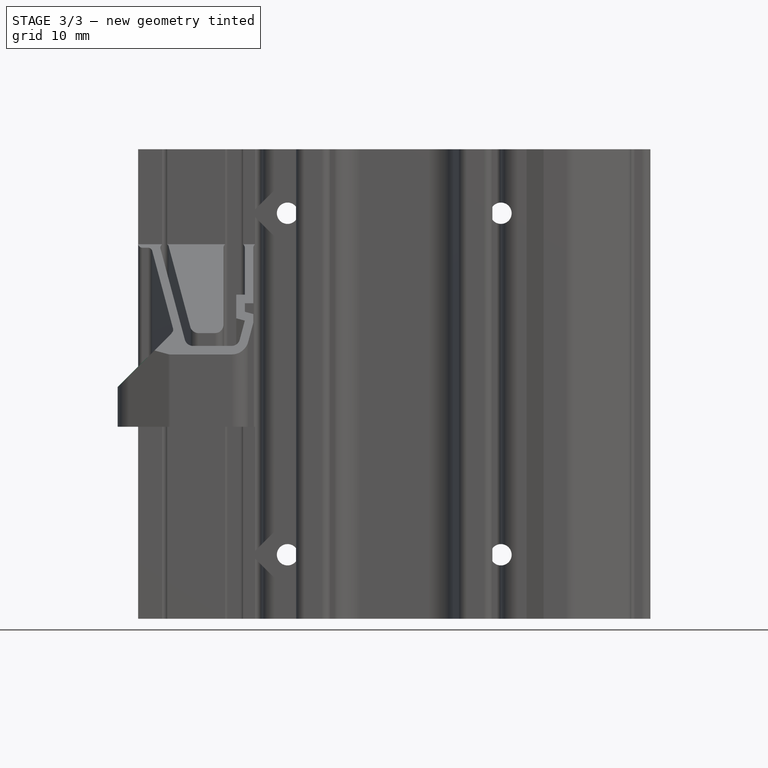
[diagram: stage 3 of 3 — front view after this stage's code; geometry added in this stage tinted green]
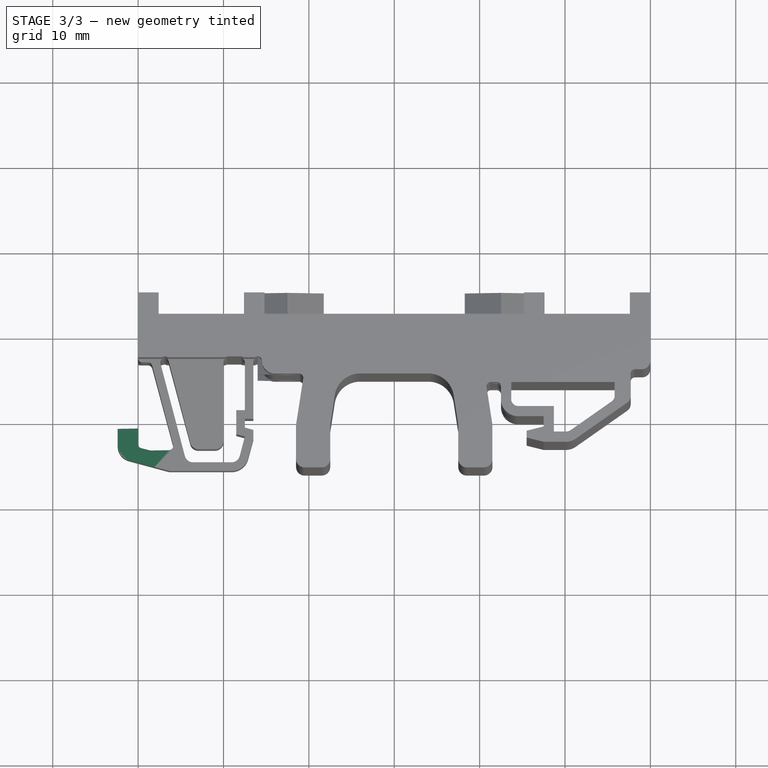
[diagram: stage 3 of 3 — top view after this stage's code; geometry added in this stage tinted green]
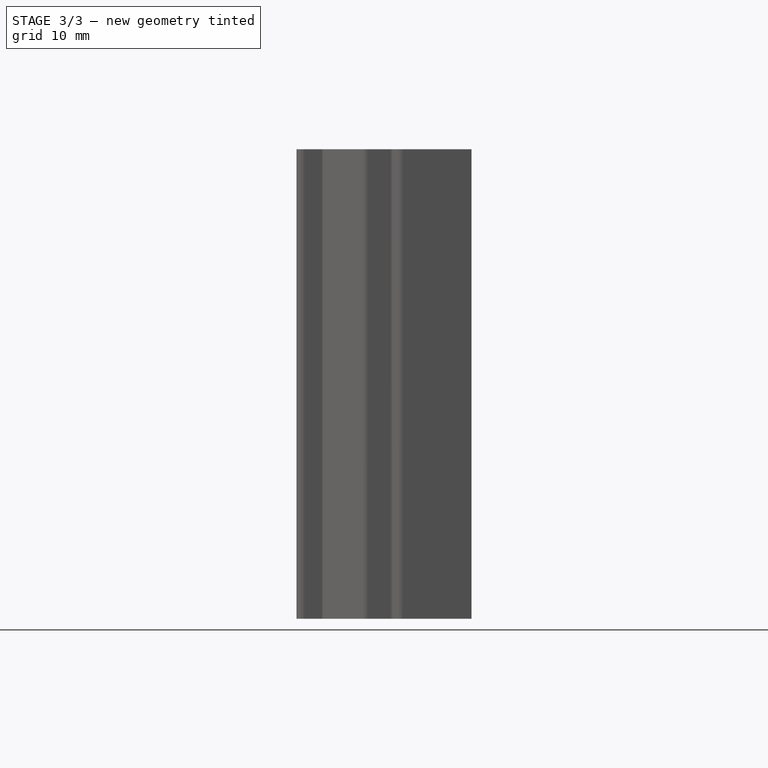
[diagram: stage 3 of 3 — right view after this stage's code; geometry added in this stage tinted green]
FEATURE [Sketcher::SketchObject] Sketch005
  AttachmentOffset = pos=(0,0,3.5) rot=(0,0,1;0rad)
  FullyConstrained = false
  MapMode = 5
  Placement = pos=(0,-3.5,-8e-16) rot=(1,0,0;1.5708rad)
  Support = -> [XZ_Plane]
  sketch-geometry (4):
    g0: LineSegment StartX=-47.072 StartY=34.2025 StartZ=0 EndX=-47.072 EndY=-15.072 EndZ=0
    g1: LineSegment StartX=-47.072 StartY=-15.072 StartZ=0 EndX=-26 EndY=6 EndZ=0
    g2: LineSegment StartX=-26 StartY=6 StartZ=0 EndX=-26 EndY=34.2025 EndZ=0
    g3: LineSegment StartX=-26 StartY=34.2025 StartZ=0 EndX=-47.072 EndY=34.2025 EndZ=0
  constraints (10):
    c: Vertical(g0)
    c: Coincident(g0,g1)
    c: Coincident(g1,g2)
    c: Vertical(g2)
    c: Coincident(g2,g3)
    c: Horizontal(g3)
    c: Angle(g1) = 0.785398
    c: Coincident(g3,g0)
    c: DistanceX(g1) = -26
    c: DistanceY(g1) = 6
FEATURE [PartDesign::Pocket] Pocket002  label="lasche kleiner 2"
  BaseFeature = -> Pocket001
  Direction = (0,1,2e-16)
  Length = 5
  Length2 = 5
  Profile = -> Sketch005
  ReferenceAxis = -> Sketch005 [N_Axis]
  Reversed = true
  Type = 1
FEATURE [Sketcher::SketchObject] Sketch006
  AttachmentOffset = pos=(0,0,3.5) rot=(0,0,1;0rad)
  FullyConstrained = false
  MapMode = 5
  Placement = pos=(0,-3.5,-8e-16) rot=(1,0,0;1.5708rad)
  Support = -> [XZ_Plane]
  sketch-geometry (4):
    g0: LineSegment StartX=-27.7528 StartY=23.4497 StartZ=0 EndX=-27.7528 EndY=4.2883 EndZ=0
    g1: LineSegment StartX=-27.7528 StartY=4.2883 StartZ=0 EndX=-37.2918 EndY=-5.25061 EndZ=0
    g2: LineSegment StartX=-37.2918 StartY=-5.25061 StartZ=0 EndX=-37.2918 EndY=23.4497 EndZ=0
    g3: LineSegment StartX=-37.2918 StartY=23.4497 StartZ=0 EndX=-27.7528 EndY=23.4497 EndZ=0
  constraints (10):
    c: Vertical(g0)
    c: Coincident(g0,g1)
    c: Coincident(g1,g2)
    c: Vertical(g2)
    c: Coincident(g2,g3)
    c: Coincident(g3,g0)
    c: Horizontal(g3)
    c: Angle(g1) = -2.35619
    c: DistanceX(g0) = -27.7528
    c: DistanceY(g0) = 4.2883
FEATURE [PartDesign::Pocket] Pocket003  label="lasche kleiner 3"
  BaseFeature = -> Pocket002
  Direction = (0,1,2e-16)
  Length = 5
  Length2 = 5
  Profile = -> Sketch006
  ReferenceAxis = -> Sketch006 [N_Axis]
  Type = 0
FEATURE [PartDesign::Body] Body  label="din_rail_pcb_holder"
  Group = -> [Sketch,Pad,Sketch001,Sketch002,Pad001,Sketch003,Pocket,Sketch004,Pocket001,Sketch005,Pocket002,Sketch006,Pocket003]
  Origin = -> Origin
  Tip = -> Pocket003
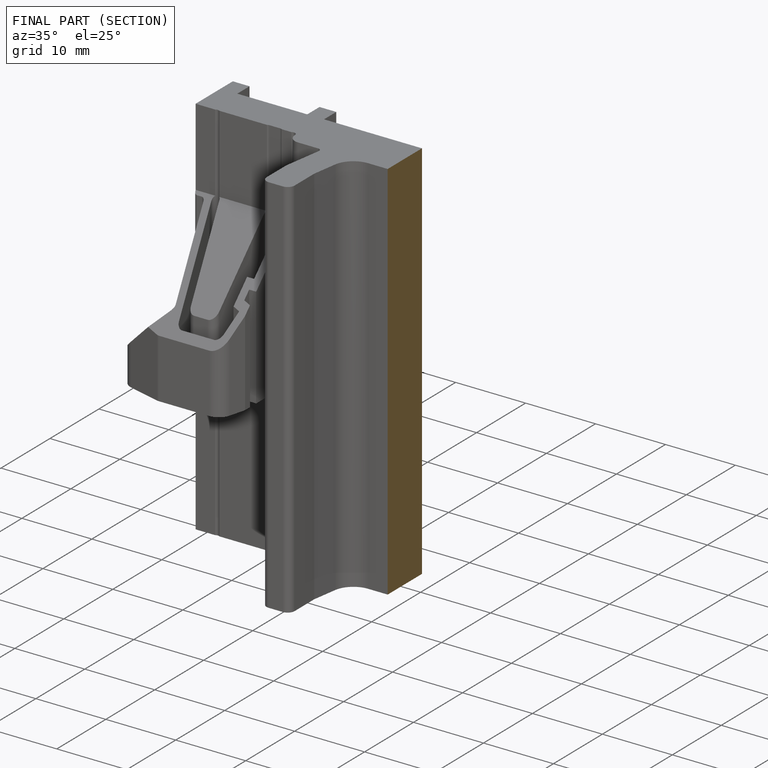
[diagram: finished part — half-section view (interior)]
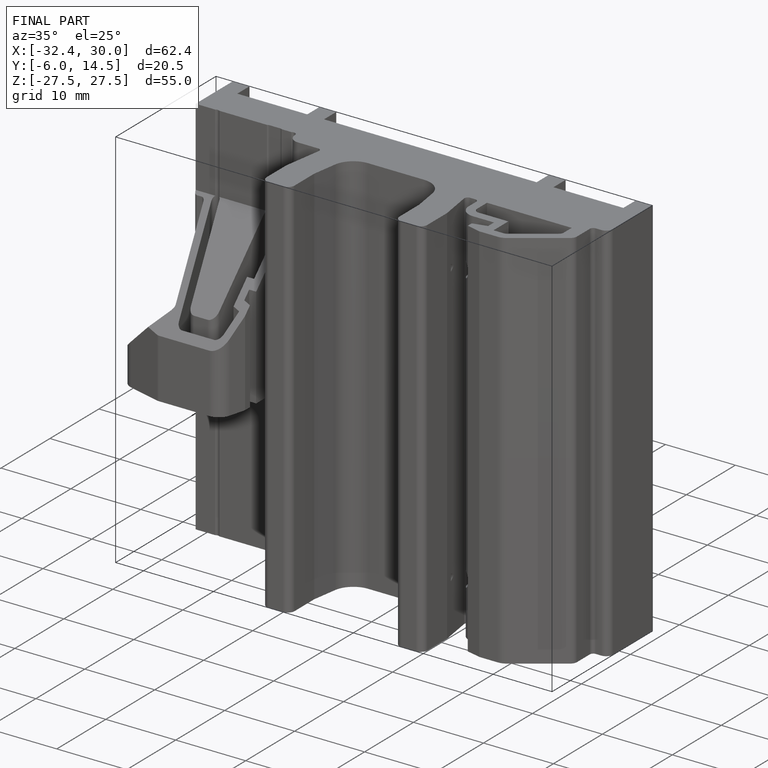
[diagram: finished part — iso view with bounding-box wireframe]
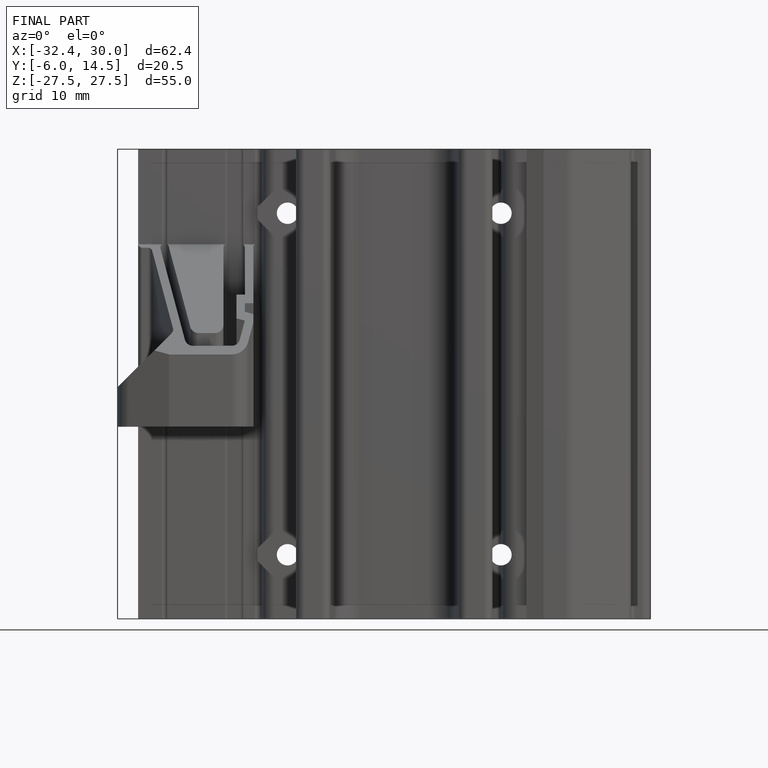
[diagram: finished part — front view with bounding-box wireframe]
